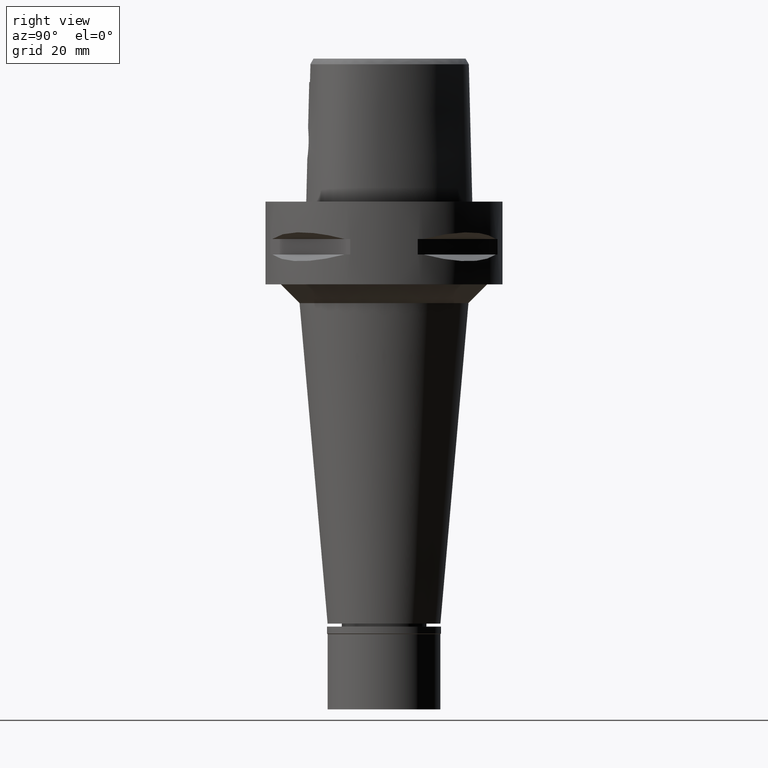
[diagram: clean part render]
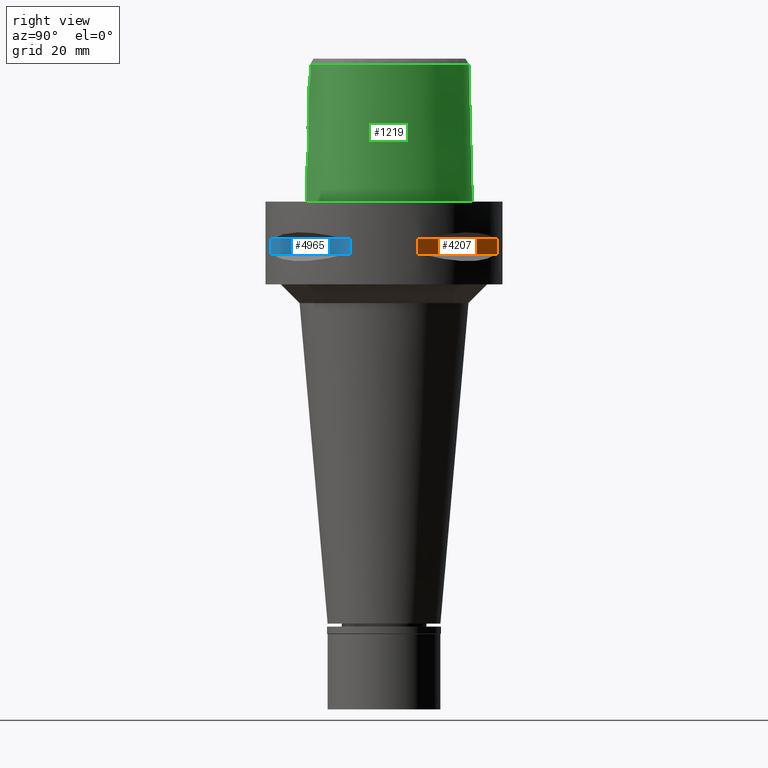
[diagram: same view with three faces highlighted in distinct colors, each labeled with its STEP entity id]
A machine part, right view with three faces highlighted in distinct colors.
Their STEP definitions:

[orange] entity #4207 — the highlighted planar face has unit normal (-0.7071, -0.7071, 0).
#288 = VERTEX_POINT ( 'NONE', #2446 ) ;
#696 = DIRECTION ( 'NONE',  ( 0.0000000000000000000, 0.0000000000000000000, -1.000000000000000000 ) ) ;
#885 = DIRECTION ( 'NONE',  ( 0.0000000000000000000, 0.0000000000000000000, 1.000000000000000000 ) ) ;
#1659 = LINE ( 'NONE', #2833, #1822 ) ;
#1683 = CARTESIAN_POINT ( 'NONE',  ( 8.981198972017999438, 30.19251670572000279, -9.950000000000001066 ) ) ;
#1690 = LINE ( 'NONE', #4462, #4415 ) ;
#1783 = VERTEX_POINT ( 'NONE', #1683 ) ;
#1822 = VECTOR ( 'NONE', #4409, 1000.000000000000114 ) ;
#1961 = VECTOR ( 'NONE', #4566, 1000.000000000000114 ) ;
#1997 = CARTESIAN_POINT ( 'NONE',  ( 30.19251670572000279, 8.981198972017999438, -14.05000000000000071 ) ) ;
#2106 = CARTESIAN_POINT ( 'NONE',  ( 5.444722215136000187, 33.72899346260000186, -9.950000000000001066 ) ) ;
#2203 = CARTESIAN_POINT ( 'NONE',  ( 30.19251670572000279, 8.981198972017999438, -14.05000000000000071 ) ) ;
#2255 = VERTEX_POINT ( 'NONE', #1997 ) ;
#2256 = LINE ( 'NONE', #2203, #1961 ) ;
#2349 = ORIENTED_EDGE ( 'NONE', *, *, #4496, .T. ) ;
#2439 = AXIS2_PLACEMENT_3D ( 'NONE', #2106, #3644, #3625 ) ;
#2446 = CARTESIAN_POINT ( 'NONE',  ( 30.19251670572000279, 8.981198972019999616, -9.950000000000001066 ) ) ;
#2596 = ORIENTED_EDGE ( 'NONE', *, *, #4893, .T. ) ;
#2833 = CARTESIAN_POINT ( 'NONE',  ( 30.19251670572000279, 8.981198972017999438, -9.950000000000001066 ) ) ;
#3003 = EDGE_CURVE ( 'NONE', #288, #1783, #1659, .T. ) ;
#3260 = FACE_OUTER_BOUND ( 'NONE', #4517, .T. ) ;
#3387 = CARTESIAN_POINT ( 'NONE',  ( 8.981198972019999616, 30.19251670572000279, -14.05000000000000071 ) ) ;
#3625 = DIRECTION ( 'NONE',  ( -0.7071067811865475727, 0.7071067811865475727, 0.0000000000000000000 ) ) ;
#3644 = DIRECTION ( 'NONE',  ( -0.7071067811865475727, -0.7071067811865475727, 0.0000000000000000000 ) ) ;
#3697 = PLANE ( 'NONE',  #2439 ) ;
#3747 = VECTOR ( 'NONE', #696, 1000.000000000000000 ) ;
#4052 = ORIENTED_EDGE ( 'NONE', *, *, #3003, .F. ) ;
#4207 = ADVANCED_FACE ( 'NONE', ( #3260 ), #3697, .F. ) ;
#4409 = DIRECTION ( 'NONE',  ( -0.7071067811865474617, 0.7071067811865474617, 0.0000000000000000000 ) ) ;
#4415 = VECTOR ( 'NONE', #885, 1000.000000000000000 ) ;
#4434 = EDGE_CURVE ( 'NONE', #288, #2255, #4602, .T. ) ;
#4462 = CARTESIAN_POINT ( 'NONE',  ( 8.981198972017999438, 30.19251670572000279, -14.05000000000000071 ) ) ;
#4496 = EDGE_CURVE ( 'NONE', #2255, #4769, #2256, .T. ) ;
#4517 = EDGE_LOOP ( 'NONE', ( #4052, #5056, #2349, #2596 ) ) ;
#4566 = DIRECTION ( 'NONE',  ( -0.7071067811865474617, 0.7071067811865474617, 0.0000000000000000000 ) ) ;
#4602 = LINE ( 'NONE', #4957, #3747 ) ;
#4769 = VERTEX_POINT ( 'NONE', #3387 ) ;
#4893 = EDGE_CURVE ( 'NONE', #4769, #1783, #1690, .T. ) ;
#4957 = CARTESIAN_POINT ( 'NONE',  ( 30.19251670572000279, 8.981198972017999438, -9.950000000000001066 ) ) ;
#5056 = ORIENTED_EDGE ( 'NONE', *, *, #4434, .T. ) ;

[blue] entity #4965 — the highlighted planar face has unit normal (-0.7071, 0.7071, 0).
#139 = EDGE_CURVE ( 'NONE', #2556, #4820, #2348, .T. ) ;
#250 = VECTOR ( 'NONE', #2252, 1000.000000000000114 ) ;
#399 = DIRECTION ( 'NONE',  ( 0.0000000000000000000, 0.0000000000000000000, -1.000000000000000000 ) ) ;
#487 = EDGE_CURVE ( 'NONE', #4820, #3577, #1788, .T. ) ;
#595 = ORIENTED_EDGE ( 'NONE', *, *, #487, .T. ) ;
#616 = PLANE ( 'NONE',  #4989 ) ;
#1177 = VECTOR ( 'NONE', #4859, 1000.000000000000114 ) ;
#1289 = EDGE_CURVE ( 'NONE', #3577, #4461, #2443, .T. ) ;
#1592 = ORIENTED_EDGE ( 'NONE', *, *, #1289, .T. ) ;
#1665 = EDGE_LOOP ( 'NONE', ( #2006, #2819, #595, #1592 ) ) ;
#1788 = LINE ( 'NONE', #2168, #1177 ) ;
#1849 = DIRECTION ( 'NONE',  ( -0.7071067811865475727, 0.7071067811865475727, 0.0000000000000000000 ) ) ;
#2006 = ORIENTED_EDGE ( 'NONE', *, *, #2138, .F. ) ;
#2069 = DIRECTION ( 'NONE',  ( 0.0000000000000000000, 0.0000000000000000000, 1.000000000000000000 ) ) ;
#2138 = EDGE_CURVE ( 'NONE', #2556, #4461, #4197, .T. ) ;
#2168 = CARTESIAN_POINT ( 'NONE',  ( 8.981198972017999438, -30.19251670572000279, -14.05000000000000071 ) ) ;
#2252 = DIRECTION ( 'NONE',  ( 0.7071067811865474617, 0.7071067811865474617, 0.0000000000000000000 ) ) ;
#2348 = LINE ( 'NONE', #3037, #2775 ) ;
#2443 = LINE ( 'NONE', #4039, #3274 ) ;
#2556 = VERTEX_POINT ( 'NONE', #3706 ) ;
#2623 = CARTESIAN_POINT ( 'NONE',  ( 30.19251670572000279, -8.981198972019999616, -14.05000000000000071 ) ) ;
#2632 = FACE_OUTER_BOUND ( 'NONE', #1665, .T. ) ;
#2637 = CARTESIAN_POINT ( 'NONE',  ( 30.19251670572000279, -8.981198972017999438, -9.950000000000001066 ) ) ;
#2775 = VECTOR ( 'NONE', #399, 1000.000000000000000 ) ;
#2819 = ORIENTED_EDGE ( 'NONE', *, *, #139, .T. ) ;
#3037 = CARTESIAN_POINT ( 'NONE',  ( 8.981198972017999438, -30.19251670572000279, -9.950000000000001066 ) ) ;
#3274 = VECTOR ( 'NONE', #2069, 1000.000000000000000 ) ;
#3307 = CARTESIAN_POINT ( 'NONE',  ( 8.981198972017999438, -30.19251670572000279, -14.05000000000000071 ) ) ;
#3428 = CARTESIAN_POINT ( 'NONE',  ( 8.981198972017999438, -30.19251670572000279, -9.950000000000001066 ) ) ;
#3433 = CARTESIAN_POINT ( 'NONE',  ( 33.72899346260000186, -5.444722215136000187, -9.950000000000001066 ) ) ;
#3577 = VERTEX_POINT ( 'NONE', #2623 ) ;
#3706 = CARTESIAN_POINT ( 'NONE',  ( 8.981198972019999616, -30.19251670572000279, -9.950000000000001066 ) ) ;
#3816 = DIRECTION ( 'NONE',  ( 0.0000000000000000000, 0.0000000000000000000, 1.000000000000000000 ) ) ;
#4039 = CARTESIAN_POINT ( 'NONE',  ( 30.19251670572000279, -8.981198972017999438, -14.05000000000000071 ) ) ;
#4197 = LINE ( 'NONE', #3428, #250 ) ;
#4461 = VERTEX_POINT ( 'NONE', #2637 ) ;
#4820 = VERTEX_POINT ( 'NONE', #3307 ) ;
#4859 = DIRECTION ( 'NONE',  ( 0.7071067811865474617, 0.7071067811865474617, 0.0000000000000000000 ) ) ;
#4965 = ADVANCED_FACE ( 'NONE', ( #2632 ), #616, .F. ) ;
#4989 = AXIS2_PLACEMENT_3D ( 'NONE', #3433, #1849, #3816 ) ;

[green] entity #1219 — the highlighted face is a freeform B-spline surface patch.
#1 = CARTESIAN_POINT ( 'NONE',  ( 16.57726025064999931, -15.19304450553000052, 24.59140884664000026 ) ) ;
#28 = CARTESIAN_POINT ( 'NONE',  ( 20.07948471682999880, -10.22500054824999971, 37.25233221322000077 ) ) ;
#45 = CARTESIAN_POINT ( 'NONE',  ( 18.35112148713999858, -13.96357030717000036, 11.93048548004999887 ) ) ;
#65 = CARTESIAN_POINT ( 'NONE',  ( 2.373090252804999967, 22.37624316100999877, 37.25233221322000077 ) ) ;
#77 = CARTESIAN_POINT ( 'NONE',  ( 20.67704204633964693, -8.734985285293671353, 36.52186680739946212 ) ) ;
#93 = CARTESIAN_POINT ( 'NONE',  ( 0.0000000000000000000, -20.18628283968999781, 19.55000000000000071 ) ) ;
#97 = CARTESIAN_POINT ( 'NONE',  ( 20.16779718585999959, 4.447573589458000853, 24.59140884664000026 ) ) ;
#114 = CARTESIAN_POINT ( 'NONE',  ( 3.704239288984441103, -19.64128042389065598, 33.37395322129999897 ) ) ;
#119 = CARTESIAN_POINT ( 'NONE',  ( 21.05621877444000134, -0.4440252186248000443, 37.25233221322000077 ) ) ;
#140 = CARTESIAN_POINT ( 'NONE',  ( 7.099337604603999985, 20.50831361345999682, 37.25233221322000077 ) ) ;
#149 = CARTESIAN_POINT ( 'NONE',  ( 7.300578979383006484, -19.07170738130497867, 36.52186680739946212 ) ) ;
#160 = EDGE_CURVE ( 'NONE', #1015, #3632, #1603, .T. ) ;
#166 = CARTESIAN_POINT ( 'NONE',  ( 2.568271206842000165, 23.31126238899999947, -0.7304378865338000404 ) ) ;
#197 = VERTEX_POINT ( 'NONE', #4642 ) ;
#235 = CARTESIAN_POINT ( 'NONE',  ( 6.341471027992995779, -20.29812504892293390, -1.976922916466011891E-06 ) ) ;
#244 = CARTESIAN_POINT ( 'NONE',  ( 4.049643110176806005, -20.05399160878187814, 15.43795828973407325 ) ) ;
#272 = CARTESIAN_POINT ( 'NONE',  ( 3.346444325181144208, -20.07049246070038606, 17.78503332968190520 ) ) ;
#287 = CARTESIAN_POINT ( 'NONE',  ( 14.40795642755664652, 15.64093753207556503, -1.976922916466011468E-06 ) ) ;
#296 = CARTESIAN_POINT ( 'NONE',  ( 3.080229322184548035, -20.08617626112495103, 18.13071590546288192 ) ) ;
#310 = CARTESIAN_POINT ( 'NONE',  ( 0.8548392458104867586, 23.47500004942541452, -1.976922916466011468E-06 ) ) ;
#321 = CARTESIAN_POINT ( 'NONE',  ( 3.686910441657936133, -20.13511169296126013, 13.82359477180941276 ) ) ;
#322 = CARTESIAN_POINT ( 'NONE',  ( 20.65879041454000031, -10.48283616414000008, 11.93048548004999887 ) ) ;
#343 = CARTESIAN_POINT ( 'NONE',  ( 22.05732879235335275, -6.847636725810371416, -1.976922916466011468E-06 ) ) ;
#350 = ORIENTED_EDGE ( 'NONE', *, *, #160, .T. ) ;
#352 = CARTESIAN_POINT ( 'NONE',  ( 3.828814954409509586, -20.04436409866676527, 16.82317999465562863 ) ) ;
#353 = CARTESIAN_POINT ( 'NONE',  ( 21.99640702106999868, -0.2778990153211000624, -0.7304378865338000404 ) ) ;
#354 = CARTESIAN_POINT ( 'NONE',  ( -7.554098293773000222E-12, -20.67499999999999716, 5.802765675373999636E-14 ) ) ;
#377 = CARTESIAN_POINT ( 'NONE',  ( 6.288476565274999430, -20.00290563849999970, 11.93048548004999887 ) ) ;
#397 = CARTESIAN_POINT ( 'NONE',  ( 14.52531259462999991, -16.95413741484999903, 11.93048548004999887 ) ) ;
#427 = CARTESIAN_POINT ( 'NONE',  ( 1.027682876504142584, -20.17741712424493272, 19.45809765211923548 ) ) ;
#428 = CARTESIAN_POINT ( 'NONE',  ( 21.94536970882000304, -4.102220499698000289, 11.93048548004999887 ) ) ;
#448 = CARTESIAN_POINT ( 'NONE',  ( 0.5662264431005000764, 22.56729384960999951, 37.25233221322000077 ) ) ;
#470 = CARTESIAN_POINT ( 'NONE',  ( 2.467729343594165847, -20.12009802658482016, 18.71204267792763787 ) ) ;
#471 = CARTESIAN_POINT ( 'NONE',  ( 7.580410842776999836, 21.33037926737999967, -0.7304378865338000404 ) ) ;
#486 = CARTESIAN_POINT ( 'NONE',  ( 4.757642236485181364, 21.67478320247374057, 36.52186680739946212 ) ) ;
#489 = CARTESIAN_POINT ( 'NONE',  ( 2.041042029990999821E-08, -19.88004246002000031, 31.80000004972000127 ) ) ;
#513 = ORIENTED_EDGE ( 'NONE', *, *, #2976, .T. ) ;
#525 = ORIENTED_EDGE ( 'NONE', *, *, #4303, .F. ) ;
#531 = CARTESIAN_POINT ( 'NONE',  ( 0.5100579658811899009, -20.38531276215466903, 11.47358267918783881 ) ) ;
#537 = CARTESIAN_POINT ( 'NONE',  ( 17.90324024157759197, -13.53935104436123460, 36.52186680739946212 ) ) ;
#571 = CARTESIAN_POINT ( 'NONE',  ( 3.671249151389730514, -19.60525176641679579, 34.94790639287000289 ) ) ;
#611 = B_SPLINE_SURFACE_WITH_KNOTS ( 'NONE', 3, 3, ( 
 ( #2698, #1621, #3548, #5051 ),
 ( #1601, #1214, #4276, #1967 ),
 ( #3526, #1110, #4714, #4245 ),
 ( #3498, #377, #2324, #3158 ),
 ( #1941, #1918, #1192, #3911 ),
 ( #4693, #397, #2646, #2721 ),
 ( #4666, #4324, #1, #3889 ),
 ( #4219, #45, #4298, #2301 ),
 ( #788, #706, #2271, #1993 ),
 ( #1545, #1572, #3833, #2743 ),
 ( #2346, #322, #733, #28 ),
 ( #1891, #817, #3865, #3453 ),
 ( #5026, #2369, #3941, #1519 ),
 ( #3061, #428, #4640, #1135 ),
 ( #353, #3084, #764, #119 ),
 ( #4810, #4374, #97, #2769 ),
 ( #1675, #2393, #870, #3569 ),
 ( #4353, #4398, #844, #1742 ),
 ( #3629, #4061, #3597, #1696 ),
 ( #471, #4011, #2091, #140 ),
 ( #2012, #2037, #924, #3961 ),
 ( #166, #3647, #4787, #65 ),
 ( #1340, #1238, #3241, #448 ),
 ( #2798, #1643, #4734, #3188 ),
 ( #4425, #2474, #4763, #1310 ) ),
 .UNSPECIFIED., .F., .F., .F.,
 ( 4, 1, 1, 1, 1, 1, 1, 1, 1, 1, 1, 1, 1, 1, 1, 1, 1, 1, 1, 1, 1, 1, 4 ),
 ( 4, 4 ),
 ( -0.008985960173574000093, 0.0000000000000000000, 0.08333333333339000559, 0.1666666666667000196, 0.2083333333333000081, 0.2500000000000000000, 0.2916666666666999919, 0.3125000000000000000, 0.3333333333333000081, 0.3541666666666000163, 0.3749999999998999689, 0.4166666666666000163, 0.4583333333332000326, 0.4999999999998999689, 0.5833333333331000015, 0.6666666666664999852, 0.7499999999998000488, 0.8333333333329999704, 0.8749999999997000177, 0.9166666666664000651, 0.9583333333329999704, 1.000000000000000000, 1.011710456763000199 ),
 ( -4.245135739460999736E-09, 1.000000216502000105 ),
 .UNSPECIFIED. ) ;
#644 = CARTESIAN_POINT ( 'NONE',  ( 7.571159459389420476, 21.31457035528369559, -1.976922916466011468E-06 ) ) ;
#656 = CARTESIAN_POINT ( 'NONE',  ( 3.749536200692483057, -20.04778253193092752, 17.03086640831055476 ) ) ;
#681 = CARTESIAN_POINT ( 'NONE',  ( 3.042491796687598615, -20.22274507510632802, 12.82354767343123747 ) ) ;
#697 = CARTESIAN_POINT ( 'NONE',  ( 18.56841068742441081, -14.16937991690989840, -1.976922916466011468E-06 ) ) ;
#705 = CARTESIAN_POINT ( 'NONE',  ( 1.511996643077990310, -20.34900293593731746, 11.74281483622983657 ) ) ;
#706 = CARTESIAN_POINT ( 'NONE',  ( 19.40779762556999799, -12.64961922859999888, 11.93048548004999887 ) ) ;
#714 = ORIENTED_EDGE ( 'NONE', *, *, #4591, .T. ) ;
#732 = CARTESIAN_POINT ( 'NONE',  ( 2.808608589973694336, -20.24816661311869481, 12.58196638594458072 ) ) ;
#733 = CARTESIAN_POINT ( 'NONE',  ( 20.36913756569000000, -10.35391835619999945, 24.59140884664000026 ) ) ;
#763 = CARTESIAN_POINT ( 'NONE',  ( 4.045013207771214425, -20.05847505277924725, 15.28275217491512272 ) ) ;
#764 = CARTESIAN_POINT ( 'NONE',  ( 21.36961485664999927, -0.3886498175236000052, 24.59140884664000026 ) ) ;
#775 = B_SPLINE_CURVE_WITH_KNOTS ( 'NONE', 3,
 ( #4155, #4547, #235, #4934, #1149, #1102, #697, #2638, #4210, #1072, #2584, #343, #1833, #3468, #1535, #5041, #287, #2262, #644, #2212, #3074, #310, #1910 ),
 .UNSPECIFIED., .F., .F.,
 ( 4, 1, 1, 1, 1, 1, 1, 1, 1, 1, 1, 1, 1, 1, 1, 1, 1, 1, 1, 1, 4 ),
 ( 0.0000000000000000000, 0.08333333333339000559, 0.1666666666667000196, 0.2083333333333000081, 0.2500000000000000000, 0.2916666666666999919, 0.3125000000000000000, 0.3333333333333000081, 0.3541666666666000163, 0.3749999999998999689, 0.4166666666666000163, 0.4583333333332000326, 0.4999999999998999689, 0.5833333333331000015, 0.6666666666664999852, 0.7499999999998000488, 0.8333333333329999704, 0.8749999999997000177, 0.9166666666664000651, 0.9583333333329999704, 1.000000000000000000 ),
 .UNSPECIFIED. ) ;
#788 = CARTESIAN_POINT ( 'NONE',  ( 19.66427015045999838, -12.83600704977999918, -0.7304378865338000404 ) ) ;
#817 = CARTESIAN_POINT ( 'NONE',  ( 21.26836734744000168, -8.910752225297001061, 11.93048548004999887 ) ) ;
#829 = CARTESIAN_POINT ( 'NONE',  ( 20.09619608768845822, -10.23243839430395319, 36.52186680739946212 ) ) ;
#842 = CARTESIAN_POINT ( 'NONE',  ( 0.4948470747598994190, -20.18628283969000492, 19.54999999999999716 ) ) ;
#843 = B_SPLINE_CURVE_WITH_KNOTS ( 'NONE', 3,
 ( #1305, #114, #571, #1712 ),
 .UNSPECIFIED., .F., .F.,
 ( 4, 4 ),
 ( 0.0000000000000000000, 1.000000000000000000 ),
 .UNSPECIFIED. ) ;
#844 = CARTESIAN_POINT ( 'NONE',  ( 13.93560853092000151, 15.24203780198000047, 24.59140884664000026 ) ) ;
#855 = CARTESIAN_POINT ( 'NONE',  ( 19.55745538000543959, -11.29150212657624053, 36.52186680739946212 ) ) ;
#870 = CARTESIAN_POINT ( 'NONE',  ( 17.53318563741999725, 10.12278921737999937, 24.59140884664000026 ) ) ;
#914 = B_SPLINE_CURVE_WITH_KNOTS ( 'NONE', 3,
 ( #4432, #928, #531, #2094, #1724, #3651, #3083, #5050, #4664, #705, #4639, #3808, #2270, #2695, #4275, #1161, #1862, #2622, #2645, #1818, #732, #4218, #3832, #4582, #4612, #681, #1441, #2978, #2298, #1840, #3753, #1544, #4556, #4244, #321, #1134, #1890, #1053, #1518, #3475, #4943, #3864, #763, #1109, #244, #3373, #3397, #3452, #4967, #4193, #2592, #352, #2247, #4164, #1465, #656, #2223, #3784, #3422, #272, #3001, #1084, #296, #5025, #4994, #1492, #3035, #3060, #2668, #1917, #1600, #2036, #470, #1642, #4733, #1620, #3981, #2345, #4759, #2368, #4692, #1237, #427, #842, #93 ),
 .UNSPECIFIED., .F., .F.,
 ( 4, 2, 2, 1, 1, 1, 2, 2, 2, 2, 2, 1, 1, 2, 2, 2, 2, 2, 2, 1, 2, 2, 2, 2, 1, 2, 2, 2, 2, 1, 1, 1, 2, 2, 2, 2, 2, 1, 1, 2, 2, 2, 2, 2, 2, 1, 2, 2, 4 ),
 ( 0.0000000000000000000, 0.06250000000000036082, 0.09375000000000059674, 0.1093750000000007216, 0.1171875000000007216, 0.1210937500000006800, 0.1230468750000005967, 0.1250000000000004996, 0.1874999999999977796, 0.2187499999999965028, 0.2343749999999958644, 0.2421874999999956701, 0.2460937499999956146, 0.2480468749999956424, 0.2499999999999956424, 0.2812500000000002776, 0.2968750000000027756, 0.3125000000000052736, 0.3437500000000101585, 0.3593750000000124345, 0.3671875000000135447, 0.3750000000000146549, 0.4375000000000242584, 0.4687500000000290323, 0.4843750000000315858, 0.4921875000000329181, 0.5000000000000341949, 0.5625000000000416334, 0.5937500000000454081, 0.6093750000000477396, 0.6171875000000488498, 0.6210937500000494049, 0.6230468750000492939, 0.6250000000000492939, 0.6875000000000419664, 0.7187500000000378586, 0.7343750000000356382, 0.7421875000000348610, 0.7460937500000344169, 0.7480468750000344169, 0.7500000000000344169, 0.7812500000000295319, 0.7968750000000273115, 0.8125000000000252021, 0.8437500000000208722, 0.8593750000000188738, 0.8671875000000178746, 0.8750000000000169864, 1.000000000000000000 ),
 .UNSPECIFIED. ) ;
#924 = CARTESIAN_POINT ( 'NONE',  ( 4.868968358641000194, 21.95285521871999990, 24.59140884664000026 ) ) ;
#928 = CARTESIAN_POINT ( 'NONE',  ( 0.2519697368790916325, -20.38876923348000503, 11.44999999999999751 ) ) ;
#934 = CARTESIAN_POINT ( 'NONE',  ( 2.376843874103304000, 22.39422497744969220, 36.52186680739946212 ) ) ;
#958 = EDGE_CURVE ( 'NONE', #3691, #4031, #3380, .T. ) ;
#1015 = VERTEX_POINT ( 'NONE', #1847 ) ;
#1053 = CARTESIAN_POINT ( 'NONE',  ( 3.850246712570787100, -20.10780614032470837, 14.21172176769479734 ) ) ;
#1064 = CARTESIAN_POINT ( 'NONE',  ( 1.251533272182344447, -19.88005341395341219, 31.80000012137772103 ) ) ;
#1072 = CARTESIAN_POINT ( 'NONE',  ( 20.93173256734707977, -10.60431642637643890, -1.976922916466011468E-06 ) ) ;
#1084 = CARTESIAN_POINT ( 'NONE',  ( 3.128678969662491482, -20.08334280844267639, 18.07279819847166280 ) ) ;
#1102 = CARTESIAN_POINT ( 'NONE',  ( 16.95889175661484316, -15.67838871089047359, -1.976922916466011468E-06 ) ) ;
#1109 = CARTESIAN_POINT ( 'NONE',  ( 4.048221369819505533, -20.05572751809215148, 15.37605551826763239 ) ) ;
#1110 = CARTESIAN_POINT ( 'NONE',  ( 1.870063857836999910, -20.39691443297000006, 11.93048548004999887 ) ) ;
#1134 = CARTESIAN_POINT ( 'NONE',  ( 3.714384130523716188, -20.13065104887486712, 13.88538127571099956 ) ) ;
#1135 = CARTESIAN_POINT ( 'NONE',  ( 21.31039798529999985, -4.105938499055999280, 37.25233221322000077 ) ) ;
#1149 = CARTESIAN_POINT ( 'NONE',  ( 14.67337966873001776, -17.21410160557213942, -1.976922916466011468E-06 ) ) ;
#1161 = CARTESIAN_POINT ( 'NONE',  ( 2.396851615580802175, -20.28741283536880502, 12.23208293719615547 ) ) ;
#1192 = CARTESIAN_POINT ( 'NONE',  ( 11.02138175398000008, -18.31230441053999769, 24.59140884664000026 ) ) ;
#1196 = VERTEX_POINT ( 'NONE', #2676 ) ;
#1214 = CARTESIAN_POINT ( 'NONE',  ( -0.4520500660241000279, -20.37458439433999757, 11.93048548004999887 ) ) ;
#1219 = ADVANCED_FACE ( 'NONE', ( #3137 ), #611, .T. ) ;
#1225 = CARTESIAN_POINT ( 'NONE',  ( 21.32871516739944795, -4.105831245033869870, 36.52186680739946212 ) ) ;
#1237 = CARTESIAN_POINT ( 'NONE',  ( 1.583085234474147729, -20.15857747892414764, 19.22794739783282481 ) ) ;
#1238 = CARTESIAN_POINT ( 'NONE',  ( 0.5990981972397000366, 23.20165460501999632, 11.93048548004999887 ) ) ;
#1277 = ORIENTED_EDGE ( 'NONE', *, *, #2662, .F. ) ;
#1305 = CARTESIAN_POINT ( 'NONE',  ( 3.736696120837999402, -19.67778323291999953, 31.80000004972999861 ) ) ;
#1310 = CARTESIAN_POINT ( 'NONE',  ( -0.6642815135812000227, 22.52377614171999909, 37.25233221322000077 ) ) ;
#1340 = CARTESIAN_POINT ( 'NONE',  ( 0.6155340743092999611, 23.51883498272999873, -0.7304378865338000404 ) ) ;
#1397 = CARTESIAN_POINT ( 'NONE',  ( -1.721503160415000160E-11, 22.56201468012000078, 36.52186680743999858 ) ) ;
#1441 = CARTESIAN_POINT ( 'NONE',  ( 3.169150985202967341, -20.20760989054315360, 12.97742286930335531 ) ) ;
#1465 = CARTESIAN_POINT ( 'NONE',  ( 3.755991642141464304, -20.04748304465435993, 17.01495889863737432 ) ) ;
#1492 = CARTESIAN_POINT ( 'NONE',  ( 2.915545606163441050, -20.09570297646316206, 18.31119129211962360 ) ) ;
#1518 = CARTESIAN_POINT ( 'NONE',  ( 3.927790621348953515, -20.09243382074338413, 14.47756111163828052 ) ) ;
#1519 = CARTESIAN_POINT ( 'NONE',  ( 21.13154853837999880, -6.714587027558000187, 37.25233221322000077 ) ) ;
#1535 = CARTESIAN_POINT ( 'NONE',  ( 20.74942745555231483, 4.657187516850373576, -1.976922916466011468E-06 ) ) ;
#1544 = CARTESIAN_POINT ( 'NONE',  ( 3.504989208434506676, -20.16277707621800275, 13.46647361527119813 ) ) ;
#1545 = CARTESIAN_POINT ( 'NONE',  ( 20.36546124962000093, -11.75800453467000040, -0.7304378865338000404 ) ) ;
#1546 = CARTESIAN_POINT ( 'NONE',  ( -1.721503160415000160E-11, 22.56201468012000078, 36.52186680743999858 ) ) ;
#1572 = CARTESIAN_POINT ( 'NONE',  ( 20.09084467277000030, -11.59945457949999970, 11.93048548004999887 ) ) ;
#1600 = CARTESIAN_POINT ( 'NONE',  ( 2.673904828756407337, -20.10928166633797076, 18.54472627324917156 ) ) ;
#1601 = CARTESIAN_POINT ( 'NONE',  ( -0.4561077450353999696, -20.69106756138000236, -0.7304378865338000404 ) ) ;
#1603 = LINE ( 'NONE', #4221, #2378 ) ;
#1620 = CARTESIAN_POINT ( 'NONE',  ( 2.144427845716718739, -20.13626349860817299, 18.93810770242221153 ) ) ;
#1621 = CARTESIAN_POINT ( 'NONE',  ( -0.6779734121428999671, -20.37023475750000046, 11.93048548004999887 ) ) ;
#1642 = CARTESIAN_POINT ( 'NONE',  ( 2.361140904826402043, -20.12552479265203331, 18.79118822093476027 ) ) ;
#1643 = CARTESIAN_POINT ( 'NONE',  ( -0.4685451933755999665, 23.16976066168000159, 11.93048548004999887 ) ) ;
#1667 = VERTEX_POINT ( 'NONE', #3557 ) ;
#1675 = CARTESIAN_POINT ( 'NONE',  ( 18.08416038767999723, 10.44089487473999966, -0.7304378865338000404 ) ) ;
#1696 = CARTESIAN_POINT ( 'NONE',  ( 10.14358053433999984, 18.45723391327999963, 37.25233221322000077 ) ) ;
#1712 = CARTESIAN_POINT ( 'NONE',  ( 3.637738219117000238, -19.56971420299000286, 36.52185956443999970 ) ) ;
#1724 = CARTESIAN_POINT ( 'NONE',  ( 1.028701314431084368, -20.37062275902201236, 11.58049741886275541 ) ) ;
#1729 = CARTESIAN_POINT ( 'NONE',  ( 2.041042029990999821E-08, -19.88004246002000031, 31.80000004972000127 ) ) ;
#1742 = CARTESIAN_POINT ( 'NONE',  ( 13.69241953438999992, 15.03666370002999919, 37.25233221322000077 ) ) ;
#1752 = CARTESIAN_POINT ( 'NONE',  ( 6.840904005482245240E-09, -20.08420636276312976, 23.63333344114113288 ) ) ;
#1818 = CARTESIAN_POINT ( 'NONE',  ( 2.758179676623911725, -20.25337897196574843, 12.53390918841327206 ) ) ;
#1833 = CARTESIAN_POINT ( 'NONE',  ( 22.24453912811934941, -4.100468749709265559, -1.976922916466011468E-06 ) ) ;
#1840 = CARTESIAN_POINT ( 'NONE',  ( 3.328551379740412930, -20.18727222456296744, 13.19186960083967186 ) ) ;
#1847 = CARTESIAN_POINT ( 'NONE',  ( -9.433993878921999819E-13, -20.38876923348000147, 11.44999999999999929 ) ) ;
#1850 = ORIENTED_EDGE ( 'NONE', *, *, #4742, .T. ) ;
#1862 = CARTESIAN_POINT ( 'NONE',  ( 2.570081009084386192, -20.27170108689807293, 12.36908902939368460 ) ) ;
#1890 = CARTESIAN_POINT ( 'NONE',  ( 3.727121516744355656, -20.12854809717472904, 13.91496385434327010 ) ) ;
#1891 = CARTESIAN_POINT ( 'NONE',  ( 21.57281239761000080, -9.001246196664999033, -0.7304378865338000404 ) ) ;
#1910 = CARTESIAN_POINT ( 'NONE',  ( 4.563465393014999971E-11, 23.47499999999000053, 5.514107688971999147E-14 ) ) ;
#1917 = CARTESIAN_POINT ( 'NONE',  ( 2.772326413959757208, -20.10389738242800917, 18.45539022241212379 ) ) ;
#1918 = CARTESIAN_POINT ( 'NONE',  ( 11.13012652914000000, -18.61140108777999913, 11.93048548004999887 ) ) ;
#1941 = CARTESIAN_POINT ( 'NONE',  ( 11.23887130429999992, -18.91049776502999791, -0.7304378865338000404 ) ) ;
#1967 = CARTESIAN_POINT ( 'NONE',  ( -0.4439347080013999469, -19.74161806026999955, 37.25233221322000077 ) ) ;
#1993 = CARTESIAN_POINT ( 'NONE',  ( 18.89485257579999811, -12.27684358622000005, 37.25233221322000077 ) ) ;
#2012 = CARTESIAN_POINT ( 'NONE',  ( 5.105252918036000231, 22.54305024721999828, -0.7304378865338000404 ) ) ;
#2036 = CARTESIAN_POINT ( 'NONE',  ( 2.520050460812478299, -20.11738995382086514, 18.67115940202065261 ) ) ;
#2037 = CARTESIAN_POINT ( 'NONE',  ( 4.987110638338000612, 22.24795273297000264, 11.93048548004999887 ) ) ;
#2055 = CARTESIAN_POINT ( 'NONE',  ( 6.820926584186569121E-09, -19.98212988583463812, 27.71666688228196307 ) ) ;
#2077 = ORIENTED_EDGE ( 'NONE', *, *, #958, .F. ) ;
#2091 = CARTESIAN_POINT ( 'NONE',  ( 7.259695350662000557, 20.78233549810000014, 24.59140884664000026 ) ) ;
#2094 = CARTESIAN_POINT ( 'NONE',  ( 0.8988479711760153368, -20.37494334817867525, 11.54879813003858935 ) ) ;
#2098 = CARTESIAN_POINT ( 'NONE',  ( 3.637738219117000238, -19.56971420299000286, 36.52185956443999970 ) ) ;
#2122 = B_SPLINE_CURVE_WITH_KNOTS ( 'NONE', 3,
 ( #3614, #3250, #934, #486, #4724, #2755, #2785, #4798, #4363, #3579, #1225, #4438, #77, #829, #855, #4746, #537, #4340, #2429, #2383, #149, #2404, #2098 ),
 .UNSPECIFIED., .F., .F.,
 ( 4, 1, 1, 1, 1, 1, 1, 1, 1, 1, 1, 1, 1, 1, 1, 1, 1, 1, 1, 1, 4 ),
 ( 0.0000000000000000000, 0.04382683003322106891, 0.08765366006602126614, 0.1314804900989268166, 0.1753073201318323393, 0.2629609801974328587, 0.3506146402631387105, 0.4382683003289496448, 0.5259219603945503030, 0.5697487904274557424, 0.6135756204602560437, 0.6574024504931615942, 0.6793158655095616894, 0.7012292805259618955, 0.7231426955423619907, 0.7450561105587620858, 0.7888829405916676363, 0.8327097706245731867, 0.8765366006573733770, 0.9641902607230897759, 1.000000000000000000 ),
 .UNSPECIFIED. ) ;
#2212 = CARTESIAN_POINT ( 'NONE',  ( 5.098437035731360645, 22.52602543670625224, -1.976922916466011468E-06 ) ) ;
#2223 = CARTESIAN_POINT ( 'NONE',  ( 3.745459306423714274, -20.04797394566475788, 17.04080371185160914 ) ) ;
#2247 = CARTESIAN_POINT ( 'NONE',  ( 3.787426346251056231, -20.04607170149531115, 16.93525315950302712 ) ) ;
#2262 = CARTESIAN_POINT ( 'NONE',  ( 10.74572894254814237, 19.17433597555162450, -1.976922916466011468E-06 ) ) ;
#2270 = CARTESIAN_POINT ( 'NONE',  ( 1.734379789056268439, -20.33697246834248062, 11.83436638252621975 ) ) ;
#2271 = CARTESIAN_POINT ( 'NONE',  ( 19.15132510069000205, -12.46323140740999946, 24.59140884664000026 ) ) ;
#2298 = CARTESIAN_POINT ( 'NONE',  ( 3.289399613304852643, -20.19244639184435641, 13.13636645579001083 ) ) ;
#2301 = CARTESIAN_POINT ( 'NONE',  ( 17.88993632214999963, -13.52674998337000112, 37.25233221322000077 ) ) ;
#2324 = CARTESIAN_POINT ( 'NONE',  ( 6.232237552934000391, -19.68961162220999839, 24.59140884664000026 ) ) ;
#2345 = CARTESIAN_POINT ( 'NONE',  ( 1.856701250911930279, -20.14848423775700681, 19.09993988372597684 ) ) ;
#2346 = CARTESIAN_POINT ( 'NONE',  ( 20.94844326340000151, -10.61175397208999982, -0.7304378865338000404 ) ) ;
#2368 = CARTESIAN_POINT ( 'NONE',  ( 1.675120599128862686, -20.15532933629845758, 19.18749499249262769 ) ) ;
#2369 = CARTESIAN_POINT ( 'NONE',  ( 21.76083704363000138, -6.805026033335000335, 11.93048548004999887 ) ) ;
#2378 = VECTOR ( 'NONE', #4717, 1000.000000000000114 ) ;
#2383 = CARTESIAN_POINT ( 'NONE',  ( 10.91891095221184571, -18.03046396092846493, 36.52186680739946212 ) ) ;
#2393 = CARTESIAN_POINT ( 'NONE',  ( 17.80867301254999902, 10.28184204605999952, 11.93048548004999887 ) ) ;
#2404 = CARTESIAN_POINT ( 'NONE',  ( 4.467522181836123707, -19.48130276147307072, 36.52186680739946212 ) ) ;
#2429 = CARTESIAN_POINT ( 'NONE',  ( 14.22011350746198488, -16.41829354687804354, 36.52186680739946212 ) ) ;
#2474 = CARTESIAN_POINT ( 'NONE',  ( -0.7025952812497000544, 23.15559737533000018, 11.93048548004999887 ) ) ;
#2584 = CARTESIAN_POINT ( 'NONE',  ( 21.55524830763734911, -8.996025404754593779, -1.976922916466011468E-06 ) ) ;
#2592 = CARTESIAN_POINT ( 'NONE',  ( 3.860403433736958601, -20.04330035600994009, 16.72651338064794047 ) ) ;
#2622 = CARTESIAN_POINT ( 'NONE',  ( 2.628027080903733825, -20.26624238139267931, 12.41747670475470855 ) ) ;
#2638 = CARTESIAN_POINT ( 'NONE',  ( 19.64947369868598770, -12.82525393535364522, -1.976922916466011468E-06 ) ) ;
#2645 = CARTESIAN_POINT ( 'NONE',  ( 2.714817435291130288, -20.25772213911184849, 12.49437854280306937 ) ) ;
#2646 = CARTESIAN_POINT ( 'NONE',  ( 14.36818021548999980, -16.67825709489000019, 24.59140884664000026 ) ) ;
#2662 = EDGE_CURVE ( 'NONE', #1015, #1196, #914, .T. ) ;
#2668 = CARTESIAN_POINT ( 'NONE',  ( 2.871987183427143542, -20.09819914941971319, 18.35556622516883962 ) ) ;
#2676 = CARTESIAN_POINT ( 'NONE',  ( 0.0000000000000000000, -20.18628283968999781, 19.55000000000000071 ) ) ;
#2695 = CARTESIAN_POINT ( 'NONE',  ( 1.946611601997928709, -20.32311006286644428, 11.93862046598771265 ) ) ;
#2698 = CARTESIAN_POINT ( 'NONE',  ( -0.6840631437209999666, -20.68668116908000343, -0.7304378865338000404 ) ) ;
#2717 = CARTESIAN_POINT ( 'NONE',  ( 4.563465393014999971E-11, 23.47499999999000053, 5.514107688971999147E-14 ) ) ;
#2721 = CARTESIAN_POINT ( 'NONE',  ( 14.21104783635999880, -16.40237677493000135, 37.25233221322000077 ) ) ;
#2743 = CARTESIAN_POINT ( 'NONE',  ( 19.54161151906000171, -11.28235466916000007, 37.25233221322000077 ) ) ;
#2755 = CARTESIAN_POINT ( 'NONE',  ( 10.15538781006992153, 18.47129526702672919, 36.52186680739946212 ) ) ;
#2769 = CARTESIAN_POINT ( 'NONE',  ( 19.86834400177000148, 4.339653556306999782, 37.25233221322000077 ) ) ;
#2785 = CARTESIAN_POINT ( 'NONE',  ( 13.70645019739128045, 15.04851265230483115, 36.52186680739946212 ) ) ;
#2798 = CARTESIAN_POINT ( 'NONE',  ( -0.4812391256181999810, 23.48607176803999863, -0.7304378865338000404 ) ) ;
#2831 = EDGE_LOOP ( 'NONE', ( #2077, #513, #525, #2836, #714, #1277, #350, #1850 ) ) ;
#2836 = ORIENTED_EDGE ( 'NONE', *, *, #4978, .T. ) ;
#2976 = EDGE_CURVE ( 'NONE', #3691, #1667, #2122, .T. ) ;
#2978 = CARTESIAN_POINT ( 'NONE',  ( 3.210108431848968102, -20.20255916619498038, 13.02975361490054063 ) ) ;
#3001 = CARTESIAN_POINT ( 'NONE',  ( 3.265869583393927300, -20.07528142228554913, 17.89964299955888904 ) ) ;
#3014 = CARTESIAN_POINT ( 'NONE',  ( 2.041042029990999821E-08, -19.88004246002000031, 31.80000004972000127 ) ) ;
#3035 = CARTESIAN_POINT ( 'NONE',  ( 2.894506219204310948, -20.09690955887031549, 18.33274339089276594 ) ) ;
#3060 = CARTESIAN_POINT ( 'NONE',  ( 2.880386059683543110, -20.09771851976560342, 18.34709984349684220 ) ) ;
#3061 = CARTESIAN_POINT ( 'NONE',  ( 22.26285557057000375, -4.100361500018000704, -0.7304378865338000404 ) ) ;
#3068 = VERTEX_POINT ( 'NONE', #1729 ) ;
#3074 = CARTESIAN_POINT ( 'NONE',  ( 2.564517737115391327, 23.29328129866576091, -1.976922916466011468E-06 ) ) ;
#3083 = CARTESIAN_POINT ( 'NONE',  ( 1.319600680390656811, -20.35863312411228421, 11.66994494017201411 ) ) ;
#3084 = CARTESIAN_POINT ( 'NONE',  ( 21.68301093886000075, -0.3332744164222999905, 11.93048548004999887 ) ) ;
#3137 = FACE_OUTER_BOUND ( 'NONE', #2831, .T. ) ;
#3158 = CARTESIAN_POINT ( 'NONE',  ( 6.175998540592999575, -19.37631760591000329, 37.25233221322000077 ) ) ;
#3188 = CARTESIAN_POINT ( 'NONE',  ( -0.4431573288905000241, 22.53713844898000218, 37.25233221322000077 ) ) ;
#3241 = CARTESIAN_POINT ( 'NONE',  ( 0.5826623201701000010, 22.88447422732000192, 24.59140884664000026 ) ) ;
#3250 = CARTESIAN_POINT ( 'NONE',  ( 0.7901461619514602575, 22.56201467849343345, 36.52186680739946212 ) ) ;
#3373 = CARTESIAN_POINT ( 'NONE',  ( 4.049995275655164484, -20.05320010482691373, 15.46762644421683852 ) ) ;
#3380 = LINE ( 'NONE', #1397, #4428 ) ;
#3397 = CARTESIAN_POINT ( 'NONE',  ( 4.050037399383525916, -20.04599349312465861, 15.75361975467016684 ) ) ;
#3407 = CARTESIAN_POINT ( 'NONE',  ( 2.503154195451701813, -19.81241979350818383, 31.80000012137772103 ) ) ;
#3422 = CARTESIAN_POINT ( 'NONE',  ( 3.559803832330558304, -20.05788146350366574, 17.44950363746816180 ) ) ;
#3452 = CARTESIAN_POINT ( 'NONE',  ( 4.026067555606275938, -20.04243146964168787, 16.01312629722239578 ) ) ;
#3453 = CARTESIAN_POINT ( 'NONE',  ( 20.65947724710000344, -8.729764282558999611, 37.25233221322000077 ) ) ;
#3468 = CARTESIAN_POINT ( 'NONE',  ( 21.97832652680038024, -0.2810937413534981832, -1.976922916466011468E-06 ) ) ;
#3475 = CARTESIAN_POINT ( 'NONE',  ( 4.002664568992802430, -20.07397280446608789, 14.86850854358316631 ) ) ;
#3498 = CARTESIAN_POINT ( 'NONE',  ( 6.344715577616000246, -20.31619965479000101, -0.7304378865338000404 ) ) ;
#3526 = CARTESIAN_POINT ( 'NONE',  ( 1.886855603546000015, -20.71358920056999864, -0.7304378865338000404 ) ) ;
#3548 = CARTESIAN_POINT ( 'NONE',  ( -0.6718836805647999677, -20.05378834592999837, 24.59140884664000026 ) ) ;
#3557 = CARTESIAN_POINT ( 'NONE',  ( 3.637738219117000238, -19.56971420299000286, 36.52185956443999970 ) ) ;
#3569 = CARTESIAN_POINT ( 'NONE',  ( 17.25769826228999904, 9.963736388696998958, 37.25233221322000077 ) ) ;
#3579 = CARTESIAN_POINT ( 'NONE',  ( 21.07429999882987204, -0.4408303635840818968, 36.52186680739946212 ) ) ;
#3597 = CARTESIAN_POINT ( 'NONE',  ( 10.34823227006000046, 18.70095486269000062, 24.59140884664000026 ) ) ;
#3614 = CARTESIAN_POINT ( 'NONE',  ( -1.721503160415000160E-11, 22.56201468012000078, 36.52186680743999858 ) ) ;
#3629 = CARTESIAN_POINT ( 'NONE',  ( 10.75753574149999814, 19.18839676150000173, -0.7304378865338000404 ) ) ;
#3632 = VERTEX_POINT ( 'NONE', #354 ) ;
#3647 = CARTESIAN_POINT ( 'NONE',  ( 2.503210888828999892, 22.99958931300000131, 11.93048548004999887 ) ) ;
#3651 = CARTESIAN_POINT ( 'NONE',  ( 1.222756221967583823, -20.36284569854002768, 11.63840396453707449 ) ) ;
#3691 = VERTEX_POINT ( 'NONE', #1546 ) ;
#3753 = CARTESIAN_POINT ( 'NONE',  ( 3.437023659522733698, -20.17240543791111307, 13.35378256640194650 ) ) ;
#3764 = DIRECTION ( 'NONE',  ( 1.720340780425959448E-12, 0.02499051290962944413, -0.9996876883629776112 ) ) ;
#3784 = CARTESIAN_POINT ( 'NONE',  ( 3.664274183421038167, -20.05181531545087736, 17.23726368440960854 ) ) ;
#3808 = CARTESIAN_POINT ( 'NONE',  ( 1.537967824490865887, -20.34761404973959031, 11.75337532982797484 ) ) ;
#3832 = CARTESIAN_POINT ( 'NONE',  ( 2.844541275135316738, -20.24438467540248254, 12.61708719066292339 ) ) ;
#3833 = CARTESIAN_POINT ( 'NONE',  ( 19.81622809591999967, -11.44090462432999900, 24.59140884664000026 ) ) ;
#3864 = CARTESIAN_POINT ( 'NONE',  ( 4.038482248007211339, -20.06165359963147665, 15.18817722016143179 ) ) ;
#3865 = CARTESIAN_POINT ( 'NONE',  ( 20.96392229726999901, -8.820258253928001224, 24.59140884664000026 ) ) ;
#3886 = B_SPLINE_CURVE_WITH_KNOTS ( 'NONE', 3,
 ( #4953, #3407, #1064, #3014 ),
 .UNSPECIFIED., .F., .F.,
 ( 4, 4 ),
 ( 0.0000000000000000000, 1.000000000000000000 ),
 .UNSPECIFIED. ) ;
#3889 = CARTESIAN_POINT ( 'NONE',  ( 16.38077671881999819, -14.94316434067000188, 37.25233221322000077 ) ) ;
#3911 = CARTESIAN_POINT ( 'NONE',  ( 10.91263697882000017, -18.01320773329000247, 37.25233221322000077 ) ) ;
#3941 = CARTESIAN_POINT ( 'NONE',  ( 21.44619279099999787, -6.759806530445999329, 24.59140884664000026 ) ) ;
#3961 = CARTESIAN_POINT ( 'NONE',  ( 4.750826078944000663, 21.65775770447000070, 37.25233221322000077 ) ) ;
#3981 = CARTESIAN_POINT ( 'NONE',  ( 2.032175996680010588, -20.14130468680036046, 19.00576489868234731 ) ) ;
#4011 = CARTESIAN_POINT ( 'NONE',  ( 7.420053096719000152, 21.05635738273999991, 11.93048548004999887 ) ) ;
#4031 = VERTEX_POINT ( 'NONE', #2717 ) ;
#4061 = CARTESIAN_POINT ( 'NONE',  ( 10.55288400577999930, 18.94467581209999807, 11.93048548004999887 ) ) ;
#4155 = CARTESIAN_POINT ( 'NONE',  ( -7.554098293773000222E-12, -20.67499999999999716, 5.802765675373999636E-14 ) ) ;
#4164 = CARTESIAN_POINT ( 'NONE',  ( 3.765593220699258392, -20.04704214534180906, 16.99108095766955984 ) ) ;
#4193 = CARTESIAN_POINT ( 'NONE',  ( 3.918456791372860515, -20.04170609324360086, 16.53266420031398098 ) ) ;
#4210 = CARTESIAN_POINT ( 'NONE',  ( 20.34961802845059609, -11.74885744662829623, -1.976922916466011468E-06 ) ) ;
#4218 = CARTESIAN_POINT ( 'NONE',  ( 2.830175095662165408, -20.24590160278924600, 12.60298252333854663 ) ) ;
#4219 = CARTESIAN_POINT ( 'NONE',  ( 18.58171406964000028, -14.18198046906999998, -0.7304378865338000404 ) ) ;
#4221 = CARTESIAN_POINT ( 'NONE',  ( -9.433993878921999819E-13, -20.38876923348000147, 11.44999999999999929 ) ) ;
#4244 = CARTESIAN_POINT ( 'NONE',  ( 3.644654988697317854, -20.14185568960485995, 13.73169098995836279 ) ) ;
#4245 = CARTESIAN_POINT ( 'NONE',  ( 1.836480366418999921, -19.76356489777000291, 37.25233221322000077 ) ) ;
#4275 = CARTESIAN_POINT ( 'NONE',  ( 2.282207029747092886, -20.29700151028867694, 12.15162930637129612 ) ) ;
#4276 = CARTESIAN_POINT ( 'NONE',  ( -0.4479923870126999996, -20.05810122730999723, 24.59140884664000026 ) ) ;
#4298 = CARTESIAN_POINT ( 'NONE',  ( 18.12052890463999688, -13.74516014527000074, 24.59140884664000026 ) ) ;
#4303 = EDGE_CURVE ( 'NONE', #197, #1667, #843, .T. ) ;
#4324 = CARTESIAN_POINT ( 'NONE',  ( 16.77374378247999687, -15.44292467038000005, 11.93048548004999887 ) ) ;
#4340 = CARTESIAN_POINT ( 'NONE',  ( 16.39211273426371562, -14.95758104715703496, 36.52186680739946212 ) ) ;
#4353 = CARTESIAN_POINT ( 'NONE',  ( 14.42198652399999936, 15.65278600588999858, -0.7304378865338000404 ) ) ;
#4363 = CARTESIAN_POINT ( 'NONE',  ( 19.88562079788567161, 4.345879946636468816, 36.52186680739946212 ) ) ;
#4374 = CARTESIAN_POINT ( 'NONE',  ( 20.46725036995000124, 4.555493622608000059, 11.93048548004999887 ) ) ;
#4398 = CARTESIAN_POINT ( 'NONE',  ( 14.17879752745999866, 15.44741190392999997, 11.93048548004999887 ) ) ;
#4425 = CARTESIAN_POINT ( 'NONE',  ( -0.7217521650838999436, 23.47150799213000383, -0.7304378865338000404 ) ) ;
#4428 = VECTOR ( 'NONE', #3764, 999.9999999999998863 ) ;
#4432 = CARTESIAN_POINT ( 'NONE',  ( -9.433993878921999819E-13, -20.38876923348000147, 11.44999999999999929 ) ) ;
#4438 = CARTESIAN_POINT ( 'NONE',  ( 21.14970177531420603, -6.717195943319649309, 36.52186680739946212 ) ) ;
#4451 = B_SPLINE_CURVE_WITH_KNOTS ( 'NONE', 3,
 ( #489, #2055, #1752, #4869 ),
 .UNSPECIFIED., .F., .F.,
 ( 4, 4 ),
 ( 0.0000000000000000000, 1.000000000000000000 ),
 .UNSPECIFIED. ) ;
#4547 = CARTESIAN_POINT ( 'NONE',  ( 2.113823676004852103, -20.67500004941687664, -1.976922916466011044E-06 ) ) ;
#4556 = CARTESIAN_POINT ( 'NONE',  ( 3.599362307491986712, -20.14875877779054747, 13.64217581387161182 ) ) ;
#4582 = CARTESIAN_POINT ( 'NONE',  ( 2.853007646188750357, -20.24348516854156799, 12.62547111175751979 ) ) ;
#4591 = EDGE_CURVE ( 'NONE', #3068, #1196, #4451, .T. ) ;
#4612 = CARTESIAN_POINT ( 'NONE',  ( 2.953000302320876624, -20.23281254683992003, 12.72512295699170082 ) ) ;
#4639 = CARTESIAN_POINT ( 'NONE',  ( 1.527965580144895252, -20.34815231994709350, 11.74928068373195345 ) ) ;
#4640 = CARTESIAN_POINT ( 'NONE',  ( 21.62788384706000144, -4.104079499376999784, 24.59140884664000026 ) ) ;
#4642 = CARTESIAN_POINT ( 'NONE',  ( 3.736696120837999402, -19.67778323291999953, 31.80000004972999861 ) ) ;
#4664 = CARTESIAN_POINT ( 'NONE',  ( 1.488028627206210652, -20.35026873354180665, 11.73319909950379092 ) ) ;
#4666 = CARTESIAN_POINT ( 'NONE',  ( 16.97022731430999798, -15.69280483523000136, -0.7304378865338000404 ) ) ;
#4692 = CARTESIAN_POINT ( 'NONE',  ( 1.613182323484495306, -20.15753140428485324, 19.21500890072704948 ) ) ;
#4693 = CARTESIAN_POINT ( 'NONE',  ( 14.68244497375999913, -17.23001773480000409, -0.7304378865338000404 ) ) ;
#4714 = CARTESIAN_POINT ( 'NONE',  ( 1.853272112128000026, -20.08023966536999794, 24.59140884664000026 ) ) ;
#4717 = DIRECTION ( 'NONE',  ( -5.771733019804828765E-13, -0.02499051295389925070, -0.9996876883618708298 ) ) ;
#4724 = CARTESIAN_POINT ( 'NONE',  ( 7.108589361577737797, 20.52412316394631020, 36.52186680739946212 ) ) ;
#4733 = CARTESIAN_POINT ( 'NONE',  ( 2.305334229535943802, -20.12831948498825341, 18.83048013503533014 ) ) ;
#4734 = CARTESIAN_POINT ( 'NONE',  ( -0.4558512611331000386, 22.85344955533000189, 24.59140884664000026 ) ) ;
#4742 = EDGE_CURVE ( 'NONE', #3632, #4031, #775, .T. ) ;
#4746 = CARTESIAN_POINT ( 'NONE',  ( 18.90964962507920077, -12.28759713487546001, 36.52186680739946212 ) ) ;
#4759 = CARTESIAN_POINT ( 'NONE',  ( 1.767192251264180891, -20.15197845540239996, 19.14519926631463775 ) ) ;
#4763 = CARTESIAN_POINT ( 'NONE',  ( -0.6834383974154000230, 22.83968675852000274, 24.59140884664000026 ) ) ;
#4787 = CARTESIAN_POINT ( 'NONE',  ( 2.438150570817000151, 22.68791623700000315, 24.59140884664000026 ) ) ;
#4798 = CARTESIAN_POINT ( 'NONE',  ( 17.27359236348991089, 9.972912859139706043, 36.52186680739946212 ) ) ;
#4810 = CARTESIAN_POINT ( 'NONE',  ( 20.76670355402999846, 4.663413655758000154, -0.7304378865338000404 ) ) ;
#4869 = CARTESIAN_POINT ( 'NONE',  ( 0.0000000000000000000, -20.18628283968999781, 19.55000000000000071 ) ) ;
#4934 = CARTESIAN_POINT ( 'NONE',  ( 11.23259758425134081, -18.89324223419839655, -1.976922916466011468E-06 ) ) ;
#4943 = CARTESIAN_POINT ( 'NONE',  ( 4.020738798819311732, -20.06858537622277439, 14.99755720161237527 ) ) ;
#4953 = CARTESIAN_POINT ( 'NONE',  ( 3.736696120837999402, -19.67778323291999953, 31.80000004972999861 ) ) ;
#4967 = CARTESIAN_POINT ( 'NONE',  ( 3.950323019400082458, -20.04135421479578838, 16.40274729697709688 ) ) ;
#4978 = EDGE_CURVE ( 'NONE', #197, #3068, #3886, .T. ) ;
#4994 = CARTESIAN_POINT ( 'NONE',  ( 2.963657114688500016, -20.09293563006355399, 18.26079471621683226 ) ) ;
#5025 = CARTESIAN_POINT ( 'NONE',  ( 3.003234361618615011, -20.09064592609322020, 18.21745801850156354 ) ) ;
#5026 = CARTESIAN_POINT ( 'NONE',  ( 22.07548129626000133, -6.850245536223999565, -0.7304378865338000404 ) ) ;
#5041 = CARTESIAN_POINT ( 'NONE',  ( 18.06826692828425607, 10.43171877484354937, -1.976922916466011468E-06 ) ) ;
#5050 = CARTESIAN_POINT ( 'NONE',  ( 1.432005274344609003, -20.35315137661976692, 11.71134280122727311 ) ) ;
#5051 = CARTESIAN_POINT ( 'NONE',  ( -0.6657939489866999683, -19.73734193434999895, 37.25233221322000077 ) ) ;